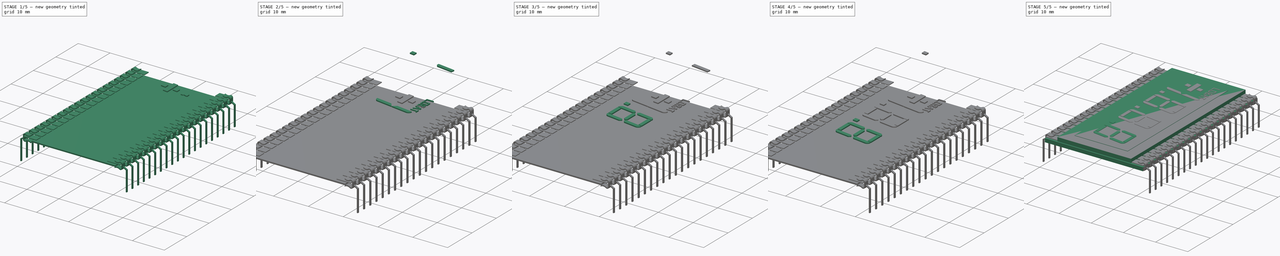
[diagram: build sequence overview — one tinted view per stage of 5, left to right]
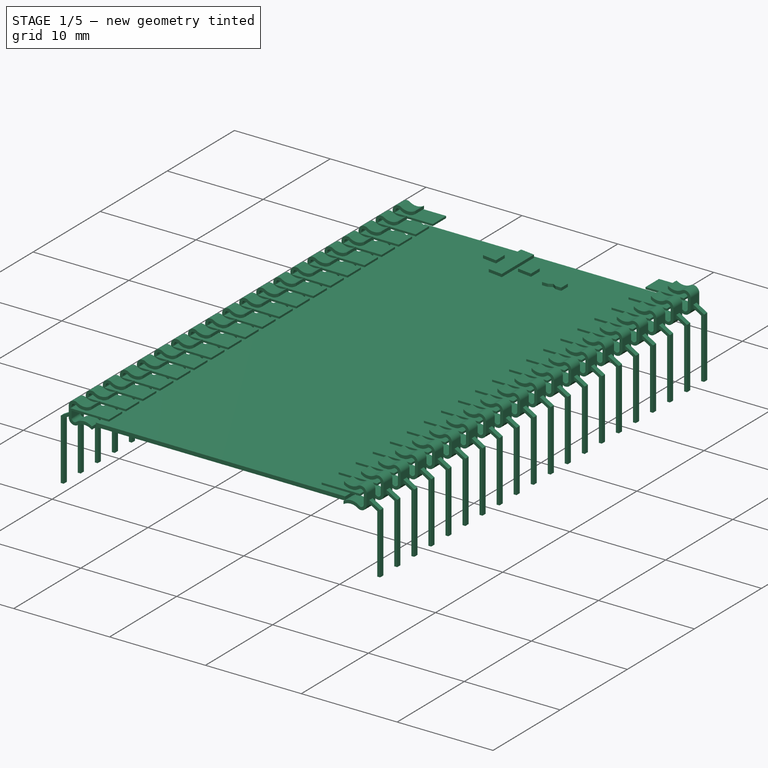
[diagram: stage 1 of 5 — iso view after this stage's code; geometry added in this stage tinted green]
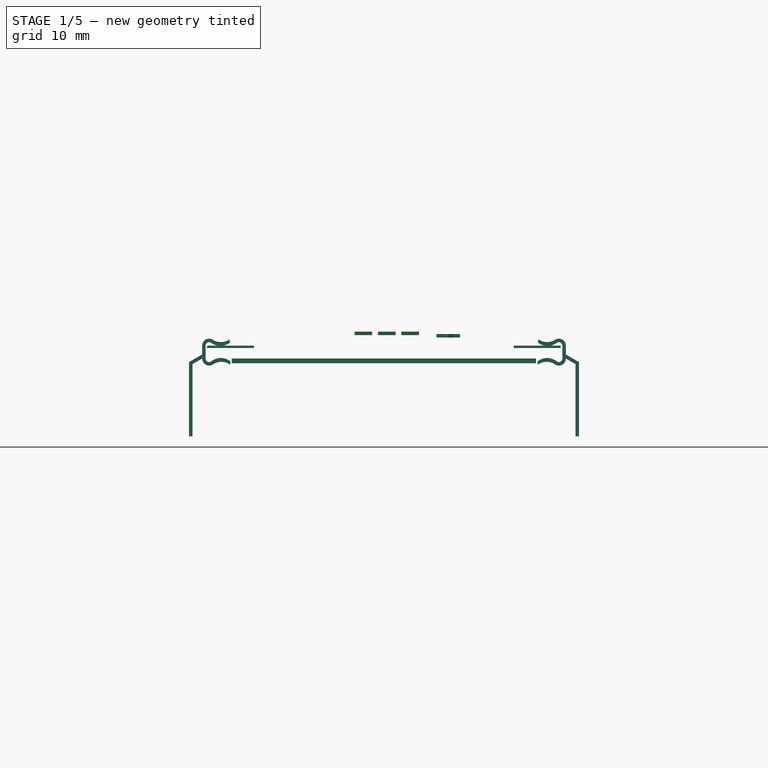
[diagram: stage 1 of 5 — front view after this stage's code; geometry added in this stage tinted green]
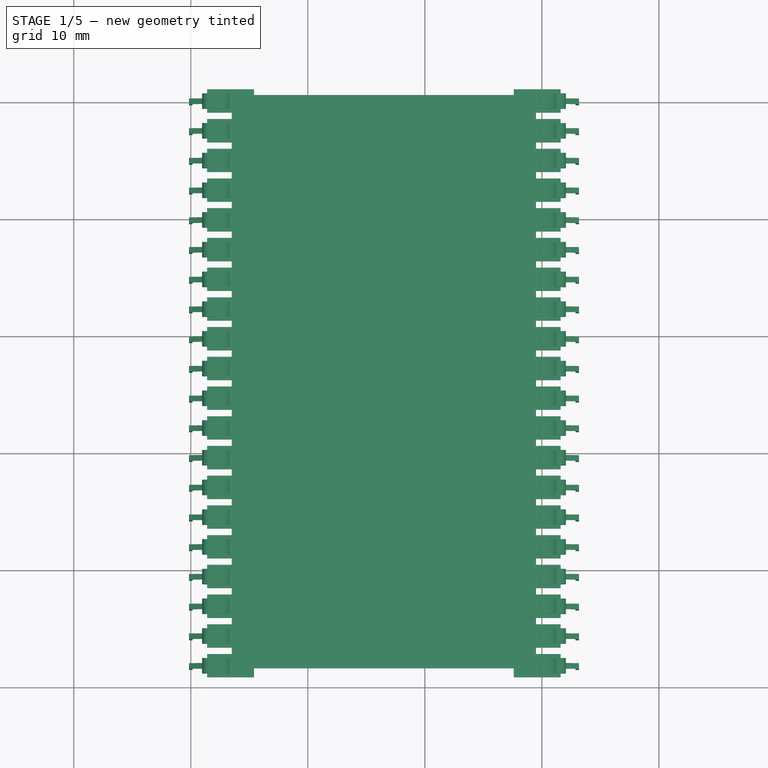
[diagram: stage 1 of 5 — top view after this stage's code; geometry added in this stage tinted green]
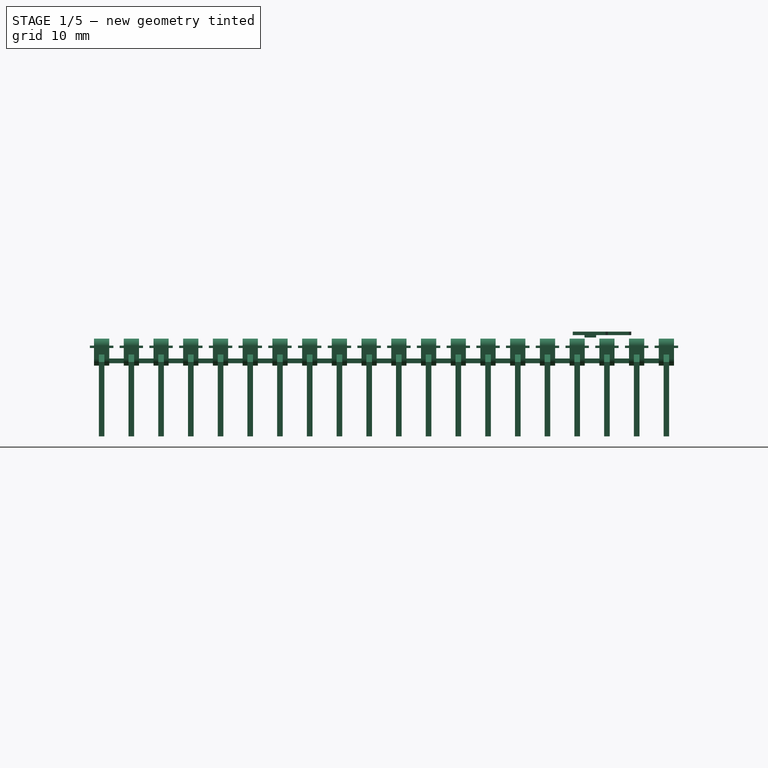
[diagram: stage 1 of 5 — right view after this stage's code; geometry added in this stage tinted green]
FCSTD DOCUMENT  (FreeCAD 0.17R11223 (Git))
Label: DE113-XX-XX_12
License: All rights reserved
LicenseURL: http://en.wikipedia.org/wiki/All_rights_reserved
objects: Part::Box×89, Part::Chamfer×38, Part::Cut×24, Part::Fillet×14, Part::MultiFuse×8, Part::FeaturePython×4, Sketcher::SketchObject×3, PartDesign::Pad×3, App::DocumentObjectGroup×3, PartDesign::Body×1
note: 187 computed .brp shape members not serialized (recipe doc carries the construction recipe); baked Part::Feature solids carry a one-line shape summary decoded from their .brp

FEATURE [Part::Box] Box003  label="Pad082"
  AttacherType = Attacher::AttachEngine3D
  Height = 0.2
  Length = 4
  Placement = pos=(1.4,-1,1.3) rot=(0,0,1;0rad)
  Width = 2
FEATURE [Part::Box] Box023  label="Pad102"
  AttacherType = Attacher::AttachEngine3D
  Height = 0.2
  Length = 4
  Placement = pos=(27.6,-1,1.3) rot=(0,0,1;0rad)
  Width = 2
FEATURE [Part::Box] Box199  label="Kub156"
  AttacherType = Attacher::AttachEngine3D
  Height = 0.3
  Length = 1.5
  Placement = pos=(11,12,2.2) rot=(0,0,1;0rad)
  Width = 1.5
FEATURE [Part::Box] Box200  label="Kub157"
  AttacherType = Attacher::AttachEngine3D
  Height = 0.3
  Length = 2
  Placement = pos=(10.5,10.76,2.2) rot=(0,0,-1;0.139626rad)
  Width = 1.5
FEATURE [Part::Box] Box201  label="Kub158"
  AttacherType = Attacher::AttachEngine3D
  Height = 0.3
  Length = 2
  Placement = pos=(10.7,13.55,2.2) rot=(0,0,-1;0.139626rad)
  Width = 1.5
FEATURE [Part::Cut] Cut027
  Base = -> Box199
  Tool = -> Box201
FEATURE [Part::Cut] Cut028
  Base = -> Cut027
  Placement = pos=(3,-18,0.2) rot=(0,0,1;0rad)
  Tool = -> Box200
FEATURE [Part::Box] Box202  label="Kub159"
  AttacherType = Attacher::AttachEngine3D
  Height = 0.3
  Length = 1.5
  Placement = pos=(11,12,2.2) rot=(0,0,1;0rad)
  Width = 1.5
FEATURE [Part::Box] Box203  label="Kub160"
  AttacherType = Attacher::AttachEngine3D
  Height = 0.3
  Length = 2
  Placement = pos=(10.5,10.76,2.2) rot=(0,0,-1;0.139626rad)
  Width = 1.5
FEATURE [Part::Box] Box204  label="Kub161"
  AttacherType = Attacher::AttachEngine3D
  Height = 0.3
  Length = 2
  Placement = pos=(10.7,13.55,2.2) rot=(0,0,-1;0.139626rad)
  Width = 1.5
FEATURE [Part::Cut] Cut029
  Base = -> Box202
  Tool = -> Box204
FEATURE [Part::Cut] Cut030
  Base = -> Cut029
  Placement = pos=(7,-18.5,0.2) rot=(0,0,1;0rad)
  Tool = -> Box203
FEATURE [Part::Box] Box205  label="Kub162"
  AttacherType = Attacher::AttachEngine3D
  Height = 0.3
  Length = 1.5
  Placement = pos=(0,10,2.2) rot=(0,0,1;0rad)
  Width = 5
FEATURE [Part::Box] Box206  label="Kub163"
  AttacherType = Attacher::AttachEngine3D
  Height = 0.3
  Length = 3
  Placement = pos=(-1,15.15,2.2) rot=(0,0,-1;0.139626rad)
  Width = 5
FEATURE [Part::Box] Box207  label="Kub164"
  AttacherType = Attacher::AttachEngine3D
  Height = 0.3
  Length = 3
  Placement = pos=(-1,5.3,2.2) rot=(0,0,-1;0.139626rad)
  Width = 5
FEATURE [Part::Cut] Cut031
  Base = -> Box205
  Tool = -> Box206
FEATURE [Part::Cut] Cut032
  Base = -> Cut031
  Placement = pos=(16,-18,0.2) rot=(0,0,1;0rad)
  Tool = -> Box207
FEATURE [Part::Box] Box229  label="Kub186"
  AttacherType = Attacher::AttachEngine3D
  Height = 0.3
  Length = 0.6
  Placement = pos=(21,-7,2.2) rot=(0,0,1;0rad)
  Width = 0.2
FEATURE [Part::Box] Box230  label="Kub187"
  AttacherType = Attacher::AttachEngine3D
  Height = 0.3
  Length = 0.6
  Placement = pos=(22.4,-7,2.2) rot=(0,0,1;0rad)
  Width = 0.2
FEATURE [Part::Box] Box231  label="Kub188"
  AttacherType = Attacher::AttachEngine3D
  Height = 0.3
  Length = 0.2
  Placement = pos=(22.8,-7,2.2) rot=(0,0,1;0rad)
  Width = 1
FEATURE [Part::Box] Box232  label="Kub189"
  AttacherType = Attacher::AttachEngine3D
  Height = 0.3
  Length = 0.6
  Placement = pos=(21.9,-6.7,2.2) rot=(0,0,-1;0.523599rad)
  Width = 0.2
FEATURE [Part::Box] Box233  label="Kub190"
  AttacherType = Attacher::AttachEngine3D
  Height = 0.3
  Length = 0.6
  Placement = pos=(21.6,-7,2.2) rot=(0,0,1;0.523599rad)
  Width = 0.2
FEATURE [Sketcher::SketchObject] Sketch041
  MapMode = 5
  sketch-geometry (12):
    g0: ArcOfCircle CenterX=0.3 CenterY=1.4 CenterZ=0 NormalX=0 NormalY=0 NormalZ=1 Radius=0.3 StartAngle=1.07185 EndAngle=3.14159
    g1: ArcOfCircle CenterX=0.3 CenterY=0.3 CenterZ=0 NormalX=0 NormalY=0 NormalZ=1 Radius=0.3 StartAngle=3.14159 EndAngle=5.21325
    g2: ArcOfCircle CenterX=1.26236 CenterY=2.71881 CenterZ=0 NormalX=0 NormalY=0 NormalZ=1 Radius=1.33577 StartAngle=4.05255 EndAngle=5.35633
    g3: ArcOfCircle CenterX=0.3 CenterY=1.4 CenterZ=0 NormalX=0 NormalY=0 NormalZ=1 Radius=0.6 StartAngle=1.16195 EndAngle=3.14159
    g4: ArcOfCircle CenterX=1.30141 CenterY=3.03549 CenterZ=0 NormalX=0 NormalY=0 NormalZ=1 Radius=1.32631 StartAngle=4.09955 EndAngle=5.32523
    g5: ArcOfCircle CenterX=0.3 CenterY=0.3 CenterZ=0 NormalX=0 NormalY=0 NormalZ=1 Radius=0.6 StartAngle=3.14159 EndAngle=5.20697
    g6: ArcOfCircle CenterX=1.29932 CenterY=-0.992274 CenterZ=0 NormalX=0 NormalY=0 NormalZ=1 Radius=1.33812 StartAngle=0.919458 EndAngle=2.26419
    g7: ArcOfCircle CenterX=1.34768 CenterY=-1.29457 CenterZ=0 NormalX=0 NormalY=0 NormalZ=1 Radius=1.31124 StartAngle=0.949854 EndAngle=2.19174
    g8: LineSegment StartX=2.11056 StartY=0.071899 StartZ=0 EndX=2.11056 EndY=-0.228101 EndZ=0
    g9: LineSegment StartX=2.06429 StartY=1.95055 StartZ=0 EndX=2.06429 EndY=1.65055 EndZ=0
    g10: LineSegment StartX=0 StartY=1.4 StartZ=0 EndX=0 EndY=0.3 EndZ=0
    g11: LineSegment StartX=-0.3 StartY=1.4 StartZ=0 EndX=-0.3 EndY=0.3 EndZ=0
  constraints (52):
    c: Radius(g0) = 0.3
    c: Radius(g2) = 1.33577
    c: Radius(g1) = 0.3
    c: DistanceX(g-1,g1) = 0.3
    c: DistanceY(g-1,g1) = 0.3
    c: Radius(g5) = 0.6
    c: DistanceX(g-1,g5) = 0.3
    c: DistanceY(g-1,g5) = 0.3
    c: DistanceY(g-1,g0) = 1.4
    c: DistanceX(g-1,g0) = 0.3
    c: Radius(g3) = 0.6
    c: DistanceX(g0,g3) = 0.3
    c: DistanceY(g-1,g3) = 1.4
    c: DistanceY(g5,g7) = 0
    c: DistanceX(g5,g7) = 0
    c: DistanceY(g1,g6) = 0
    c: DistanceX(g1,g6) = 0
    c: DistanceY(g0,g2) = 0
    c: DistanceX(g0,g2) = 0
    c: DistanceY(g3,g4) = 0
    c: DistanceX(g3,g4) = 0
    c: Radius(g4) = 1.32631
    c: Radius(g6) = 1.33812
    c: Radius(g7) = 1.31124
    c: DistanceY(g-1,g1) = 0.3
    c: DistanceY(g-1,g5) = 0.3
    c: DistanceX(g-1,g5) = 0.584797
    c: DistanceX(g1,g1) = 0.444055
    c: DistanceY(g1,g0) = 1.1
    c: DistanceY(g5,g3) = 1.1
    c: DistanceX(g0,g0) = 0.443549
    c: DistanceY(g0,g3) = 0.550548
    c: DistanceY(g7,g6) = 0.3
    c: DistanceY(g2,g4) = 0.3
    c: DistanceY(g3,g4) = 0
    c: DistanceX(g3,g4) = 1.52576
    c: DistanceX(g2,g4) = 0
    c: DistanceX(g5,g7) = 1.52576
    c: DistanceY(g7,g5) = 0
    c: DistanceX(g6,g7) = 0
    c: Coincident(g8,g6)
    c: DistanceY(g8,g8) = 0.3
    c: DistanceX(g7,g8) = 0
    c: Coincident(g9,g4)
    c: DistanceY(g9,g9) = 0.3
    c: DistanceX(g2,g9) = 0
    c: Coincident(g10,g0)
    c: DistanceY(g10,g10) = 1.1
    c: DistanceX(g1,g10) = 0
    c: Coincident(g11,g3)
    c: DistanceY(g11,g11) = 1.1
    c: DistanceX(g5,g11) = 0
FEATURE [PartDesign::Pad] Pad041  label="Pad121"
  Length = 1.3
  Length2 = 100
  Profile = -> Sketch041
  Type = 0
FEATURE [Part::Box] Box234  label="Leg"
  AttacherType = Attacher::AttachEngine3D
  Height = 0.48
  Length = 0.3
  Placement = pos=(-1.42,-6.35,0.41) rot=(0,0,1;0rad)
  Width = 6.35
FEATURE [Part::Box] Box235  label="Kub191"
  AttacherType = Attacher::AttachEngine3D
  Height = 0.48
  Length = 0.3
  Placement = pos=(-1.42,0,0.41) rot=(0,0,-1;1.0472rad)
  Width = 1.4
FEATURE [Part::MultiFuse] Fusion085  label="Leg0001"
  Placement = pos=(1.27,0.65,0.1) rot=(1,0,0;1.5708rad)
  Shapes = -> [Pad041,Box235,Box234]
FEATURE [Sketcher::SketchObject] Sketch081
  MapMode = 5
  sketch-geometry (12):
    g0: ArcOfCircle CenterX=0.3 CenterY=1.4 CenterZ=0 NormalX=0 NormalY=0 NormalZ=1 Radius=0.3 StartAngle=1.07185 EndAngle=3.14159
    g1: ArcOfCircle CenterX=0.3 CenterY=0.3 CenterZ=0 NormalX=0 NormalY=0 NormalZ=1 Radius=0.3 StartAngle=3.14159 EndAngle=5.21325
    g2: ArcOfCircle CenterX=1.26236 CenterY=2.71881 CenterZ=0 NormalX=0 NormalY=0 NormalZ=1 Radius=1.33577 StartAngle=4.05255 EndAngle=5.35633
    g3: ArcOfCircle CenterX=0.3 CenterY=1.4 CenterZ=0 NormalX=0 NormalY=0 NormalZ=1 Radius=0.6 StartAngle=1.16195 EndAngle=3.14159
    g4: ArcOfCircle CenterX=1.30141 CenterY=3.03549 CenterZ=0 NormalX=0 NormalY=0 NormalZ=1 Radius=1.32631 StartAngle=4.09955 EndAngle=5.32523
    g5: ArcOfCircle CenterX=0.3 CenterY=0.3 CenterZ=0 NormalX=0 NormalY=0 NormalZ=1 Radius=0.6 StartAngle=3.14159 EndAngle=5.20697
    g6: ArcOfCircle CenterX=1.29932 CenterY=-0.992274 CenterZ=0 NormalX=0 NormalY=0 NormalZ=1 Radius=1.33812 StartAngle=0.919458 EndAngle=2.26419
    g7: ArcOfCircle CenterX=1.34768 CenterY=-1.29457 CenterZ=0 NormalX=0 NormalY=0 NormalZ=1 Radius=1.31124 StartAngle=0.949854 EndAngle=2.19174
    g8: LineSegment StartX=2.11056 StartY=0.071899 StartZ=0 EndX=2.11056 EndY=-0.228101 EndZ=0
    g9: LineSegment StartX=2.06429 StartY=1.95055 StartZ=0 EndX=2.06429 EndY=1.65055 EndZ=0
    g10: LineSegment StartX=0 StartY=1.4 StartZ=0 EndX=0 EndY=0.3 EndZ=0
    g11: LineSegment StartX=-0.3 StartY=1.4 StartZ=0 EndX=-0.3 EndY=0.3 EndZ=0
  constraints (52):
    c: Radius(g0) = 0.3
    c: Radius(g2) = 1.33577
    c: Radius(g1) = 0.3
    c: DistanceX(g-1,g1) = 0.3
    c: DistanceY(g-1,g1) = 0.3
    c: Radius(g5) = 0.6
    c: DistanceX(g-1,g5) = 0.3
    c: DistanceY(g-1,g5) = 0.3
    c: DistanceY(g-1,g0) = 1.4
    c: DistanceX(g-1,g0) = 0.3
    c: Radius(g3) = 0.6
    c: DistanceX(g0,g3) = 0.3
    c: DistanceY(g-1,g3) = 1.4
    c: DistanceY(g5,g7) = 0
    c: DistanceX(g5,g7) = 0
    c: DistanceY(g1,g6) = 0
    c: DistanceX(g1,g6) = 0
    c: DistanceY(g0,g2) = 0
    c: DistanceX(g0,g2) = 0
    c: DistanceY(g3,g4) = 0
    c: DistanceX(g3,g4) = 0
    c: Radius(g4) = 1.32631
    c: Radius(g6) = 1.33812
    c: Radius(g7) = 1.31124
    c: DistanceY(g-1,g1) = 0.3
    c: DistanceY(g-1,g5) = 0.3
    c: DistanceX(g-1,g5) = 0.584797
    c: DistanceX(g1,g1) = 0.444055
    c: DistanceY(g1,g0) = 1.1
    c: DistanceY(g5,g3) = 1.1
    c: DistanceX(g0,g0) = 0.443549
    c: DistanceY(g0,g3) = 0.550548
    c: DistanceY(g7,g6) = 0.3
    c: DistanceY(g2,g4) = 0.3
    c: DistanceY(g3,g4) = 0
    c: DistanceX(g3,g4) = 1.52576
    c: DistanceX(g2,g4) = 0
    c: DistanceX(g5,g7) = 1.52576
    c: DistanceY(g7,g5) = 0
    c: DistanceX(g6,g7) = 0
    c: Coincident(g8,g6)
    c: DistanceY(g8,g8) = 0.3
    c: DistanceX(g7,g8) = 0
    c: Coincident(g9,g4)
    c: DistanceY(g9,g9) = 0.3
    c: DistanceX(g2,g9) = 0
    c: Coincident(g10,g0)
    c: DistanceY(g10,g10) = 1.1
    c: DistanceX(g1,g10) = 0
    c: Coincident(g11,g3)
    c: DistanceY(g11,g11) = 1.1
    c: DistanceX(g5,g11) = 0
FEATURE [PartDesign::Pad] Pad081  label="Pad161"
  Length = 1.3
  Length2 = 100
  Profile = -> Sketch081
  Type = 0
FEATURE [Part::Box] Box314  label="Leg0080"
  AttacherType = Attacher::AttachEngine3D
  Height = 0.48
  Length = 0.3
  Placement = pos=(-1.42,-6.35,0.41) rot=(0,0,1;0rad)
  Width = 6.35
FEATURE [Part::Box] Box315  label="Kub231"
  AttacherType = Attacher::AttachEngine3D
  Height = 0.48
  Length = 0.3
  Placement = pos=(-1.42,0,0.41) rot=(0,0,-1;1.0472rad)
  Width = 1.4
FEATURE [Part::MultiFuse] Fusion125  label="Leg0081"
  Placement = pos=(31.75,-0.65,0.1) rot=(0,0.707107,0.707107;3.14159rad)
  Shapes = -> [Pad081,Box315,Box314]
FEATURE [Part::MultiFuse] Fusion  label="Minus"
  Shapes = -> [Cut028,Cut030,Cut032]
FEATURE [App::DocumentObjectGroup] Grupp002  label="Digits"
  Group = -> [Fusion081,Fusion082,Fusion083,Fusion084,Fusion080,Fusion]
FEATURE [Part::Box] Box316  label="UnderBed"
  AttacherType = Attacher::AttachEngine3D
  Height = 0.4
  Length = 26
  Placement = pos=(3.5,-48.47,0) rot=(0,0,1;0rad)
  Width = 49
FEATURE [Part::FeaturePython] Array  label="Pin001-0019"  # Draft array (typed FeaturePython)
  Angle = 360
  ArrayType = 0
  Axis = (0,0,1)
  Base = -> Fusion085
  Center = (0,0,0)
  Fuse = false
  IntervalAxis = (0,0,0)
  IntervalX = (1,0,0)
  IntervalY = (0,-2.54,0)
  IntervalZ = (0,0,0)
  NumberPolar = 1
  NumberX = 1
  NumberY = 20
  NumberZ = 1
FEATURE [Part::FeaturePython] Array001  label="Pin020-040"  # Draft array (typed FeaturePython)
  Angle = 360
  ArrayType = 0
  Axis = (0,0,1)
  Base = -> Fusion125
  Center = (0,0,0)
  Fuse = false
  IntervalAxis = (0,0,0)
  IntervalX = (1,0,0)
  IntervalY = (0,-2.54,0)
  IntervalZ = (0,0,0)
  NumberPolar = 1
  NumberX = 1
  NumberY = 20
  NumberZ = 1
FEATURE [App::DocumentObjectGroup] Grupp001  label="Legs"
  Group = -> [Fusion125,Fusion085,Array,Array001]
FEATURE [Part::FeaturePython] Array002  label="Pads020-040"  # Draft array (typed FeaturePython)
  Angle = 360
  ArrayType = 0
  Axis = (0,0,1)
  Base = -> Box023
  Center = (0,0,0)
  Fuse = false
  IntervalAxis = (0,0,0)
  IntervalX = (1,0,0)
  IntervalY = (0,-2.54,0)
  IntervalZ = (0,0,0)
  NumberPolar = 1
  NumberX = 1
  NumberY = 20
  NumberZ = 1
FEATURE [App::DocumentObjectGroup] Grupp  label="Pads"
  Group = -> [Box003,Box023,Array002]
FEATURE [Part::FeaturePython] Array003  label="Pads001-020"  # Draft array (typed FeaturePython)
  Angle = 360
  ArrayType = 0
  Axis = (0,0,1)
  Base = -> Box003
  Center = (0,0,0)
  Fuse = false
  IntervalAxis = (0,0,0)
  IntervalX = (1,0,0)
  IntervalY = (0,-2.54,0)
  IntervalZ = (0,0,0)
  NumberPolar = 1
  NumberX = 1
  NumberY = 20
  NumberZ = 1
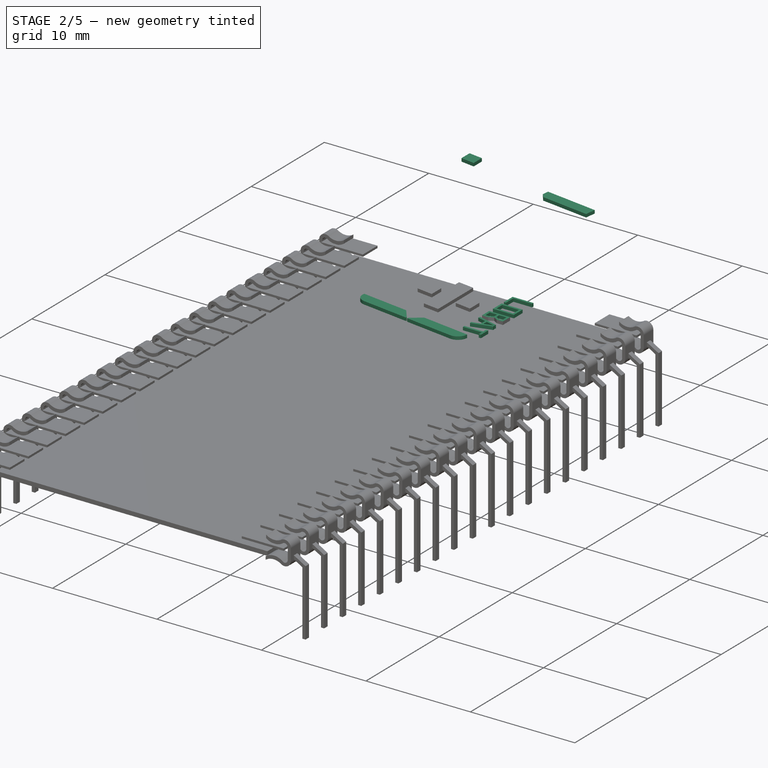
[diagram: stage 2 of 5 — iso view after this stage's code; geometry added in this stage tinted green]
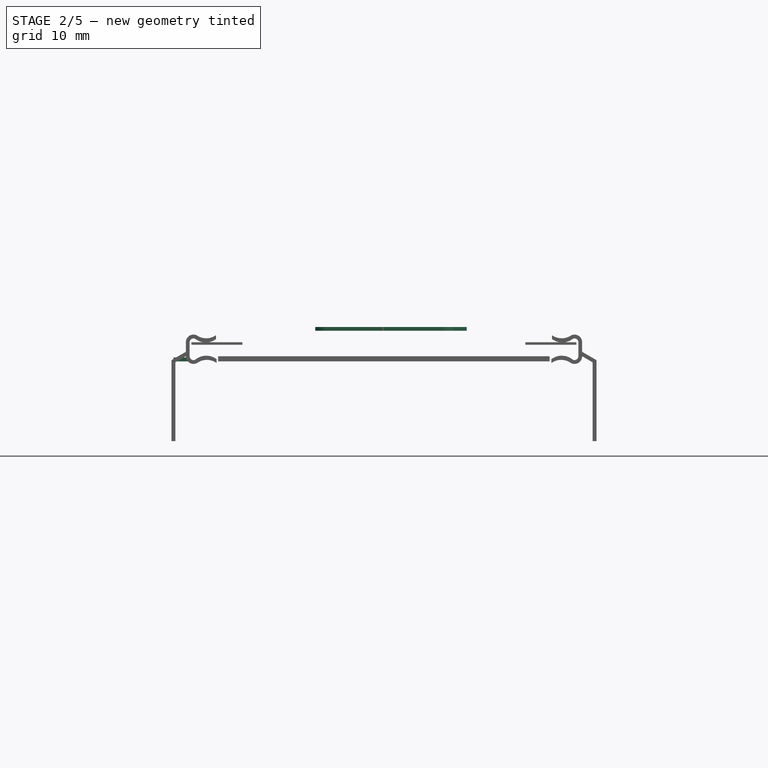
[diagram: stage 2 of 5 — front view after this stage's code; geometry added in this stage tinted green]
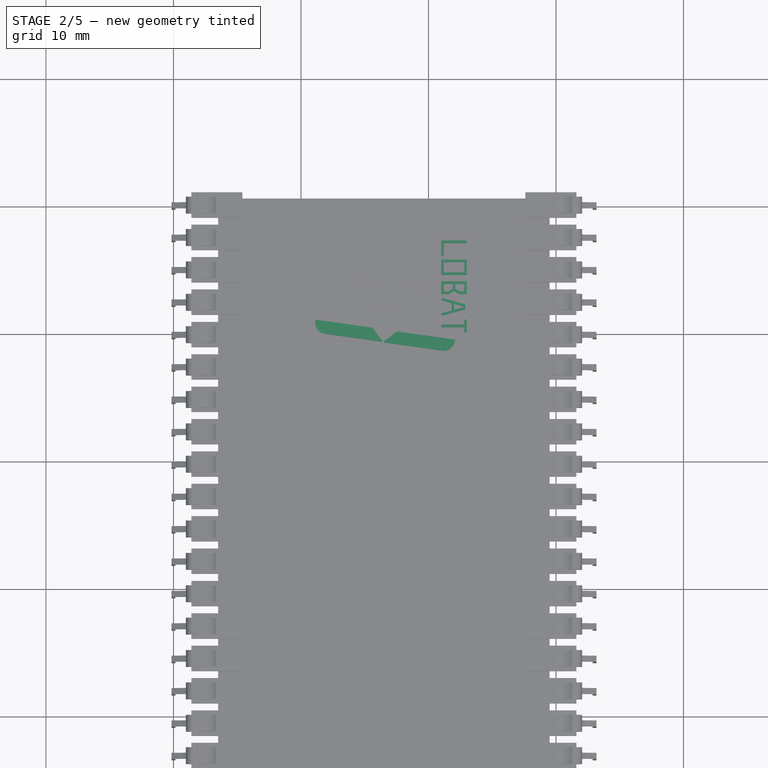
[diagram: stage 2 of 5 — top view after this stage's code; geometry added in this stage tinted green]
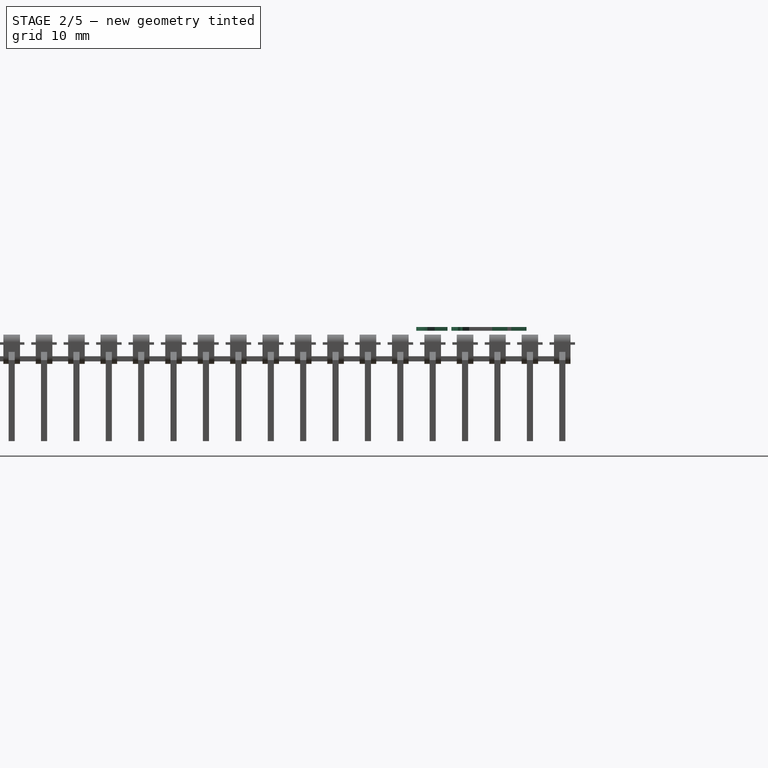
[diagram: stage 2 of 5 — right view after this stage's code; geometry added in this stage tinted green]
FEATURE [Part::Box] Box183  label="Kub140"
  AttacherType = Attacher::AttachEngine3D
  Height = 0.3
  Length = 5
  Placement = pos=(9,18,0) rot=(0,0,-1;0.139626rad)
  Width = 1
FEATURE [Part::Chamfer] Chamfer070
  Base = -> Box183
  Edges = 1 edges r=0.4: [Edge1]
FEATURE [Part::Box] Box192  label="Kub149"
  AttacherType = Attacher::AttachEngine3D
  Height = 0.3
  Length = 1.3
  Placement = pos=(0,20,0) rot=(0,0,1;0rad)
  Width = 1.3
FEATURE [Part::Box] Box193  label="Kub150"
  AttacherType = Attacher::AttachEngine3D
  Height = 0.3
  Length = 2
  Placement = pos=(-0.5,19.25,0) rot=(0,0,-1;0.139626rad)
  Width = 1
FEATURE [Part::Box] Box194  label="Kub151"
  AttacherType = Attacher::AttachEngine3D
  Height = 0.3
  Length = 2
  Placement = pos=(-0.5,21.37,0) rot=(0,0,-1;0.139626rad)
  Width = 1
FEATURE [Part::Cut] Cut025
  Base = -> Box192
  Tool = -> Box194
FEATURE [Part::Cut] Cut026
  Base = -> Cut025
  Tool = -> Box193
FEATURE [Part::Box] Box196  label="Kub153"
  AttacherType = Attacher::AttachEngine3D
  Height = 0.3
  Length = 5.4
  Placement = pos=(0,13,0) rot=(0,0,-1;0.139626rad)
  Width = 1
FEATURE [Part::Box] Box198  label="Kub155"
  AttacherType = Attacher::AttachEngine3D
  Height = 0.3
  Length = 5.5
  Placement = pos=(6,12,0) rot=(0,0,-1;0.139626rad)
  Width = 1
FEATURE [Part::Chamfer] Chamfer072
  Base = -> Box196
  Edges = 1 edges r=0.9: [Edge7]
FEATURE [Part::Chamfer] Chamfer
  Base = -> Box198
  Edges = 1 edges r=0.9: [Edge3]
FEATURE [Part::Fillet] Fillet014
  Base = -> Chamfer
  Edges = 1 edges r=0.9: [Edge12]
  Placement = pos=(-0.5,0.2,0) rot=(0,0,1;0rad)
FEATURE [Part::Fillet] Fillet015
  Base = -> Chamfer072
  Edges = 1 edges r=0.9: [Edge12]
FEATURE [Part::MultiFuse] Fusion083  label="Digit000"
  Placement = pos=(11,-23,2.4) rot=(0,0,1;0rad)
  Shapes = -> [Fillet014,Fillet015]
FEATURE [Part::Box] Box208  label="Kub165"
  AttacherType = Attacher::AttachEngine3D
  Height = 0.3
  Length = 1
  Placement = pos=(21,-3,2.2) rot=(0,0,1;0rad)
  Width = 0.2
FEATURE [Part::Box] Box209  label="Kub166"
  AttacherType = Attacher::AttachEngine3D
  Height = 0.3
  Length = 1
  Placement = pos=(22,-3,2.2) rot=(0,0,1;0rad)
  Width = 0.2
FEATURE [Part::Box] Box210  label="Kub167"
  AttacherType = Attacher::AttachEngine3D
  Height = 0.3
  Length = 0.2
  Placement = pos=(21,-4,2.2) rot=(0,0,1;0rad)
  Width = 1
FEATURE [Part::Box] Box211  label="Kub168"
  AttacherType = Attacher::AttachEngine3D
  Height = 0.3
  Length = 0.2
  Placement = pos=(21,-5.5,2.2) rot=(0,0,1;0rad)
  Width = 1
FEATURE [Part::Box] Box212  label="Kub169"
  AttacherType = Attacher::AttachEngine3D
  Height = 0.3
  Length = 1
  Placement = pos=(21,-5.5,2.2) rot=(0,0,1;0rad)
  Width = 0.2
FEATURE [Part::Box] Box213  label="Kub170"
  AttacherType = Attacher::AttachEngine3D
  Height = 0.3
  Length = 1
  Placement = pos=(22,-5.5,2.2) rot=(0,0,1;0rad)
  Width = 0.2
FEATURE [Part::Box] Box214  label="Kub171"
  AttacherType = Attacher::AttachEngine3D
  Height = 0.3
  Length = 1
  Placement = pos=(22,-4.5,2.2) rot=(0,0,1;0rad)
  Width = 0.2
FEATURE [Part::Box] Box215  label="Kub172"
  AttacherType = Attacher::AttachEngine3D
  Height = 0.3
  Length = 1
  Placement = pos=(21,-4.5,2.2) rot=(0,0,1;0rad)
  Width = 0.2
FEATURE [Part::Box] Box216  label="Kub173"
  AttacherType = Attacher::AttachEngine3D
  Height = 0.3
  Length = 0.2
  Placement = pos=(22.8,-5.5,2.2) rot=(0,0,1;0rad)
  Width = 1
FEATURE [Part::Box] Box217  label="Kub174"
  AttacherType = Attacher::AttachEngine3D
  Height = 0.3
  Length = 0.2
  Placement = pos=(21,-7,2.2) rot=(0,0,1;0rad)
  Width = 1
FEATURE [Part::Box] Box218  label="Kub175"
  AttacherType = Attacher::AttachEngine3D
  Height = 0.3
  Length = 0.2
  Placement = pos=(21.8,-8.4,2.2) rot=(0,0,1;0rad)
  Width = 0.7
FEATURE [Part::Box] Box219  label="Kub176"
  AttacherType = Attacher::AttachEngine3D
  Height = 0.3
  Length = 0.2
  Placement = pos=(22.8,-10,2.2) rot=(0,0,1;0rad)
  Width = 1
FEATURE [Part::Box] Box220  label="Kub177"
  AttacherType = Attacher::AttachEngine3D
  Height = 0.3
  Length = 1
  Placement = pos=(22,-9.6,2.2) rot=(0,0,1;0rad)
  Width = 0.2
FEATURE [Part::Box] Box221  label="Kub178"
  AttacherType = Attacher::AttachEngine3D
  Height = 0.3
  Length = 1
  Placement = pos=(21,-9.6,2.2) rot=(0,0,1;0rad)
  Width = 0.2
FEATURE [Part::Box] Box222  label="Kub179"
  AttacherType = Attacher::AttachEngine3D
  Height = 0.3
  Length = 1
  Placement = pos=(21,-6.2,2.2) rot=(0,0,1;0rad)
  Width = 0.2
FEATURE [Part::Box] Box223  label="Kub180"
  AttacherType = Attacher::AttachEngine3D
  Height = 0.3
  Length = 1
  Placement = pos=(22,-6.2,2.2) rot=(0,0,1;0rad)
  Width = 0.2
FEATURE [Part::Box] Box224  label="Kub181"
  AttacherType = Attacher::AttachEngine3D
  Height = 0.3
  Length = 1
  Placement = pos=(21,-7.5,2.2) rot=(0,0,-1;0.261799rad)
  Width = 0.2
FEATURE [Part::Box] Box225  label="Kub182"
  AttacherType = Attacher::AttachEngine3D
  Height = 0.3
  Length = 1
  Placement = pos=(21.9,-7.75,2.2) rot=(0,0,-1;0.261799rad)
  Width = 0.2
FEATURE [Part::Box] Box226  label="Kub183"
  AttacherType = Attacher::AttachEngine3D
  Height = 0.3
  Length = 1
  Placement = pos=(21.05,-8.7,2.2) rot=(0,0,1;0.261799rad)
  Width = 0.2
FEATURE [Part::Box] Box227  label="Kub184"
  AttacherType = Attacher::AttachEngine3D
  Height = 0.3
  Length = 1
  Placement = pos=(21.96,-8.45,2.2) rot=(0,0,1;0.261799rad)
  Width = 0.2
FEATURE [Part::Box] Box228  label="Kub185"
  AttacherType = Attacher::AttachEngine3D
  Height = 0.3
  Length = 0.2
  Placement = pos=(21.9,-6.7,2.2) rot=(0,0,1;0rad)
  Width = 0.7
FEATURE [Part::MultiFuse] Fusion084  label="Lowbat"
  Placement = pos=(0,0,0.2) rot=(0,0,1;0rad)
  Shapes = -> [Box233,Box212,Box214,Box218,Box225,Box217,Box220,Box208,Box211,Box213,Box215,Box224,Box210,Box222,Box209,Box221,Box216,Box219,Box223,Box226,Box231,Box228,Box232,Box227,Box230,Box229]
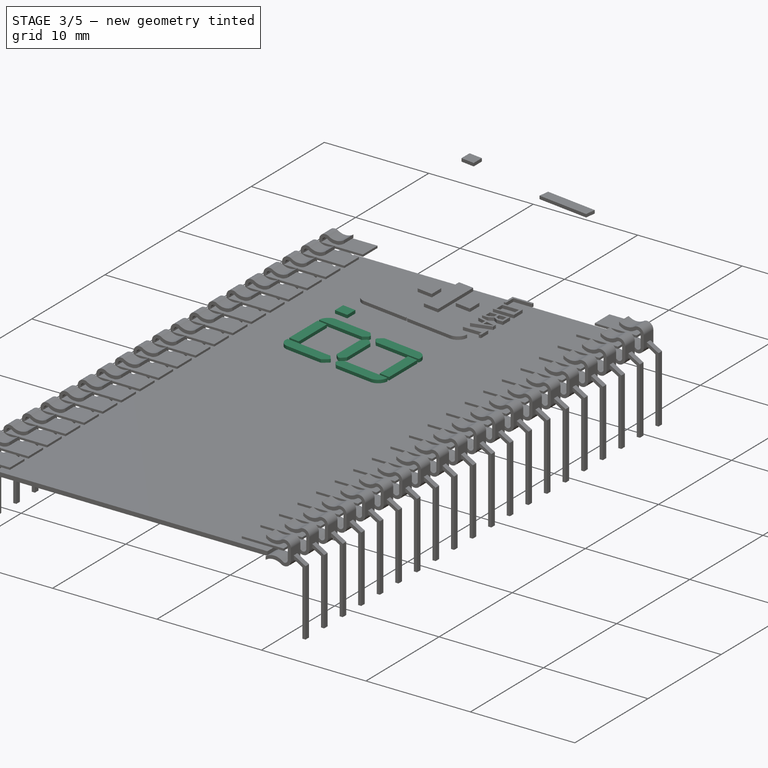
[diagram: stage 3 of 5 — iso view after this stage's code; geometry added in this stage tinted green]
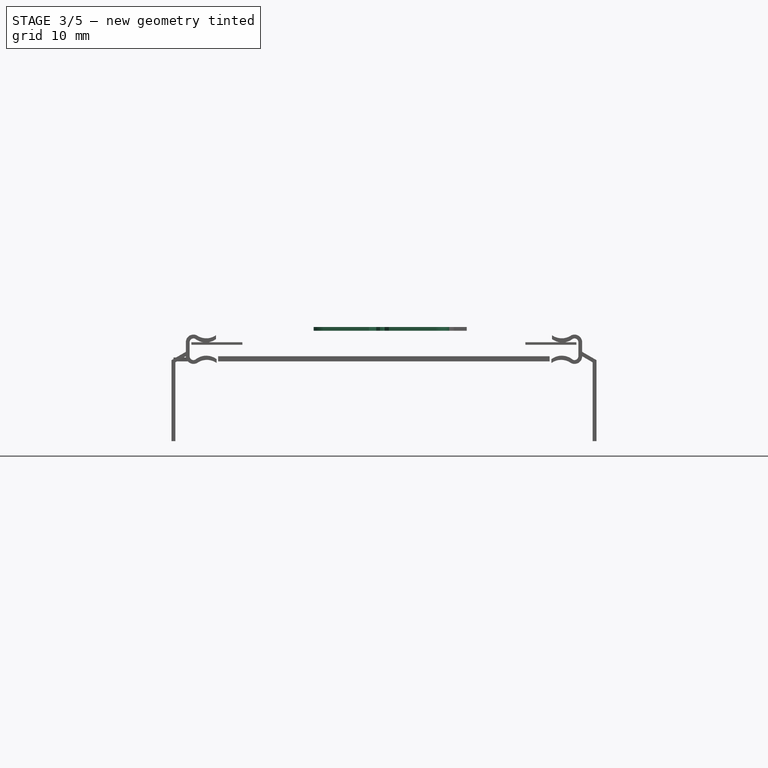
[diagram: stage 3 of 5 — front view after this stage's code; geometry added in this stage tinted green]
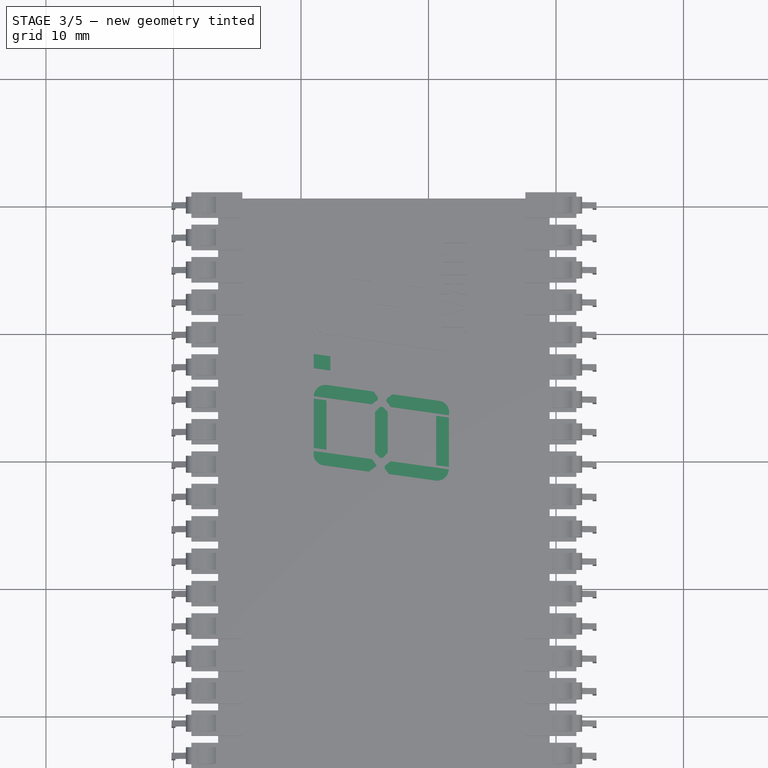
[diagram: stage 3 of 5 — top view after this stage's code; geometry added in this stage tinted green]
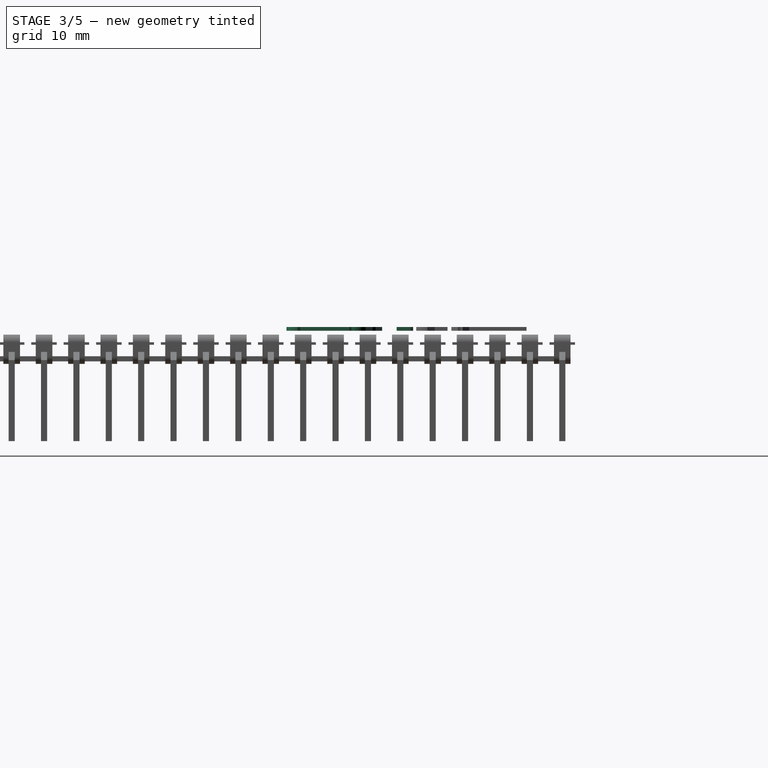
[diagram: stage 3 of 5 — right view after this stage's code; geometry added in this stage tinted green]
FEATURE [Part::Box] Box169  label="Kub126"
  AttacherType = Attacher::AttachEngine3D
  Height = 0.3
  Length = 5
  Placement = pos=(9,18,0) rot=(0,0,-1;0.139626rad)
  Width = 1
FEATURE [Part::Box] Box178  label="Kub135"
  AttacherType = Attacher::AttachEngine3D
  Height = 0.3
  Length = 1.3
  Placement = pos=(0,20,0) rot=(0,0,1;0rad)
  Width = 1.3
FEATURE [Part::Box] Box179  label="Kub136"
  AttacherType = Attacher::AttachEngine3D
  Height = 0.3
  Length = 2
  Placement = pos=(-0.5,19.25,0) rot=(0,0,-1;0.139626rad)
  Width = 1
FEATURE [Part::Box] Box180  label="Kub137"
  AttacherType = Attacher::AttachEngine3D
  Height = 0.3
  Length = 2
  Placement = pos=(-0.5,21.37,0) rot=(0,0,-1;0.139626rad)
  Width = 1
FEATURE [Part::Cut] Cut019
  Base = -> Box178
  Tool = -> Box180
FEATURE [Part::Cut] Cut020
  Base = -> Cut019
  Tool = -> Box179
FEATURE [Part::Box] Box181  label="Kub138"
  AttacherType = Attacher::AttachEngine3D
  Height = 0.3
  Length = 5
  Placement = pos=(0,18,0) rot=(0,0,-1;0.139626rad)
  Width = 1
FEATURE [Part::Box] Box182  label="Kub139"
  AttacherType = Attacher::AttachEngine3D
  Height = 0.3
  Length = 5
  Placement = pos=(0,13,0) rot=(0,0,-1;0.139626rad)
  Width = 1
FEATURE [Part::Box] Box184  label="Kub141"
  AttacherType = Attacher::AttachEngine3D
  Height = 0.3
  Length = 5
  Placement = pos=(6,12,0) rot=(0,0,-1;0.139626rad)
  Width = 1
FEATURE [Part::Box] Box185  label="Kub142"
  AttacherType = Attacher::AttachEngine3D
  Height = 0.3
  Length = 1
  Placement = pos=(-4,6,0) rot=(0,0,1;0rad)
  Width = 4
FEATURE [Part::Box] Box186  label="Kub143"
  AttacherType = Attacher::AttachEngine3D
  Height = 0.3
  Length = 3
  Placement = pos=(-5,10.14,0) rot=(0,0,-1;0.139626rad)
  Width = 1
FEATURE [Part::Box] Box187  label="Kub144"
  AttacherType = Attacher::AttachEngine3D
  Height = 0.3
  Length = 3
  Placement = pos=(-5,5.27,0) rot=(0,0,-1;0.139626rad)
  Width = 1
FEATURE [Part::Box] Box188  label="Kub145"
  AttacherType = Attacher::AttachEngine3D
  Height = 0.3
  Length = 1
  Placement = pos=(-10,14,0) rot=(0,0,1;0rad)
  Width = 4
FEATURE [Part::Box] Box189  label="Kub146"
  AttacherType = Attacher::AttachEngine3D
  Height = 0.3
  Length = 1
  Placement = pos=(-4,14,0) rot=(0,0,1;0rad)
  Width = 4
FEATURE [Part::Box] Box190  label="Kub147"
  AttacherType = Attacher::AttachEngine3D
  Height = 0.3
  Length = 3
  Placement = pos=(-5,18.14,0) rot=(0,0,-1;0.139626rad)
  Width = 1
FEATURE [Part::Box] Box191  label="Kub148"
  AttacherType = Attacher::AttachEngine3D
  Height = 0.3
  Length = 3
  Placement = pos=(-5,13.27,0) rot=(0,0,-1;0.139626rad)
  Width = 1
FEATURE [Part::Chamfer] Chamfer060
  Base = -> Box188
  Edges = 1 edges r=0.4: [Edge3]
FEATURE [Part::Chamfer] Chamfer061
  Base = -> Chamfer060
  Edges = 1 edges r=0.4: [Edge15]
FEATURE [Part::Chamfer] Chamfer062
  Base = -> Chamfer061
  Edges = 1 edges r=0.4: [Edge14]
FEATURE [Part::Chamfer] Chamfer063
  Base = -> Chamfer062
  Edges = 1 edges r=0.4: [Edge16]
  Placement = pos=(14.8,-0.85,0) rot=(0,0,1;0rad)
FEATURE [Part::Cut] Cut021
  Base = -> Box189
  Tool = -> Box191
FEATURE [Part::Cut] Cut022
  Base = -> Cut021
  Placement = pos=(4,-0.2,0) rot=(0,0,1;0rad)
  Tool = -> Box190
FEATURE [Part::Cut] Cut023
  Base = -> Box185
  Tool = -> Box187
FEATURE [Part::Cut] Cut024
  Base = -> Cut023
  Placement = pos=(13.6,6.45,0) rot=(0,0,1;0rad)
  Tool = -> Box186
FEATURE [Part::Chamfer] Chamfer064
  Base = -> Box181
  Edges = 1 edges r=0.4: [Edge7]
FEATURE [Part::Chamfer] Chamfer065
  Base = -> Chamfer064
  Edges = 1 edges r=0.4: [Edge3]
FEATURE [Part::Fillet] Fillet010
  Base = -> Chamfer065
  Edges = 1 edges r=0.9: [Edge18]
FEATURE [Part::Fillet] Fillet011
  Base = -> Box182
  Edges = 1 edges r=0.9: [Edge1]
FEATURE [Part::Chamfer] Chamfer066
  Base = -> Fillet011
  Edges = 1 edges r=0.5: [Edge15]
FEATURE [Part::Chamfer] Chamfer067
  Base = -> Chamfer066
  Edges = 1 edges r=0.4: [Edge14]
  Placement = pos=(-0.13,-0.3,0) rot=(0,0,1;0rad)
FEATURE [Part::Chamfer] Chamfer068
  Base = -> Box184
  Edges = 1 edges r=0.4: [Edge3]
FEATURE [Part::Chamfer] Chamfer069
  Base = -> Chamfer068
  Edges = 1 edges r=0.4: [Edge3]
FEATURE [Part::Fillet] Fillet012
  Base = -> Chamfer069
  Edges = 1 edges r=0.9: [Edge17]
  Placement = pos=(-0.5,-0.05,0) rot=(0,0,1;0rad)
FEATURE [Part::Chamfer] Chamfer071
  Base = -> Chamfer070
  Edges = 1 edges r=0.4: [Edge3]
FEATURE [Part::Fillet] Fillet013
  Base = -> Chamfer071
  Edges = 1 edges r=0.9: [Edge17]
  Placement = pos=(-3.36,-0.8,0) rot=(0,0,1;0rad)
FEATURE [Part::MultiFuse] Fusion082  label="Digit001"
  Placement = pos=(11,-33,2.4) rot=(0,0,1;0rad)
  Shapes = -> [Cut024,Fillet010,Fillet013,Chamfer067,Fillet012,Cut022,Cut026,Chamfer063]
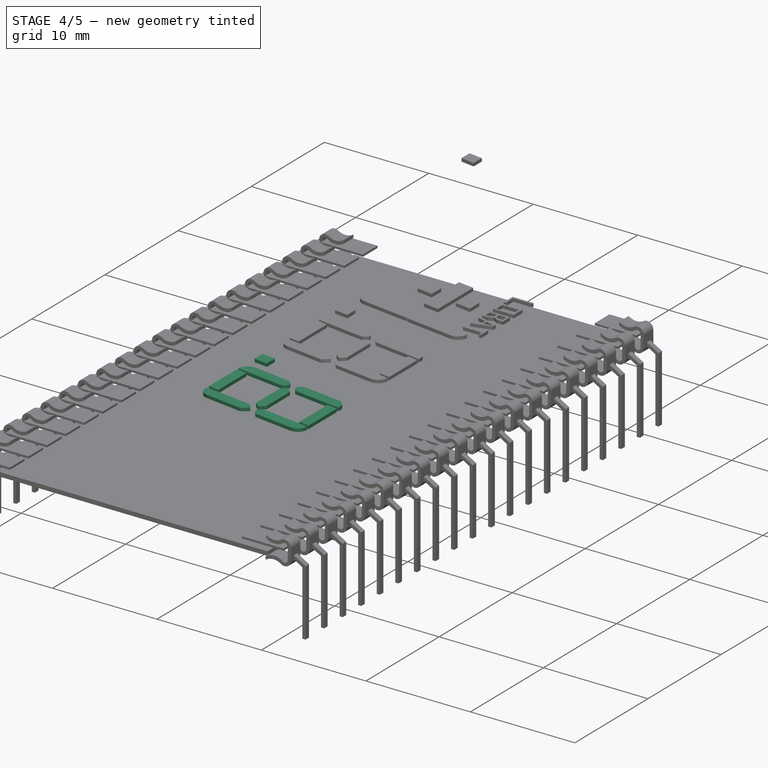
[diagram: stage 4 of 5 — iso view after this stage's code; geometry added in this stage tinted green]
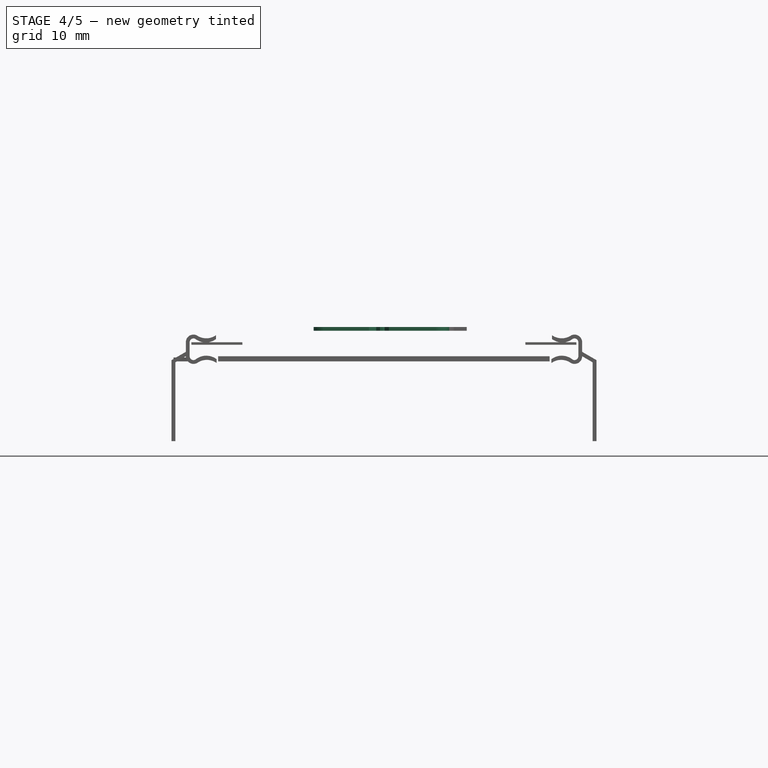
[diagram: stage 4 of 5 — front view after this stage's code; geometry added in this stage tinted green]
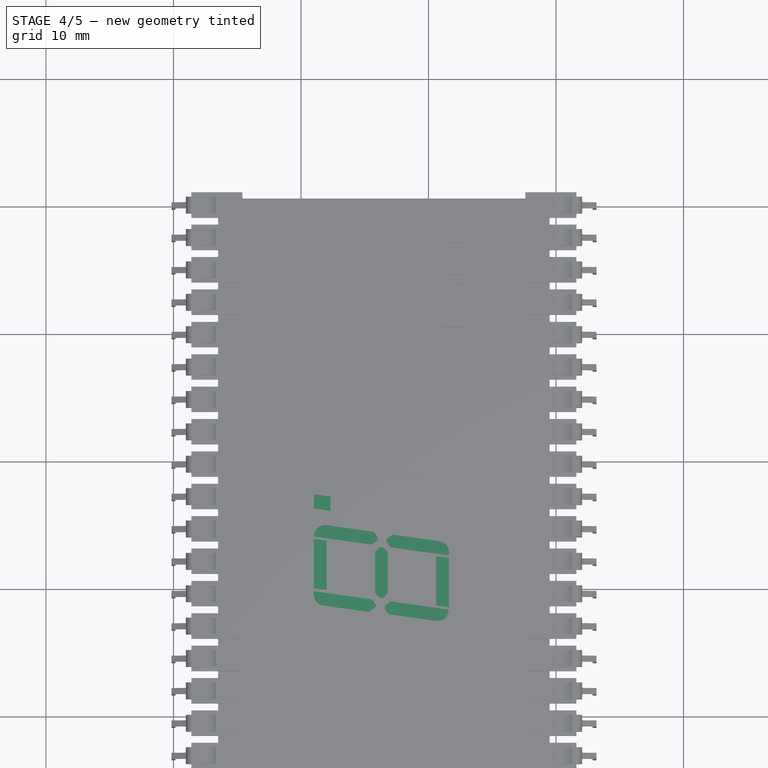
[diagram: stage 4 of 5 — top view after this stage's code; geometry added in this stage tinted green]
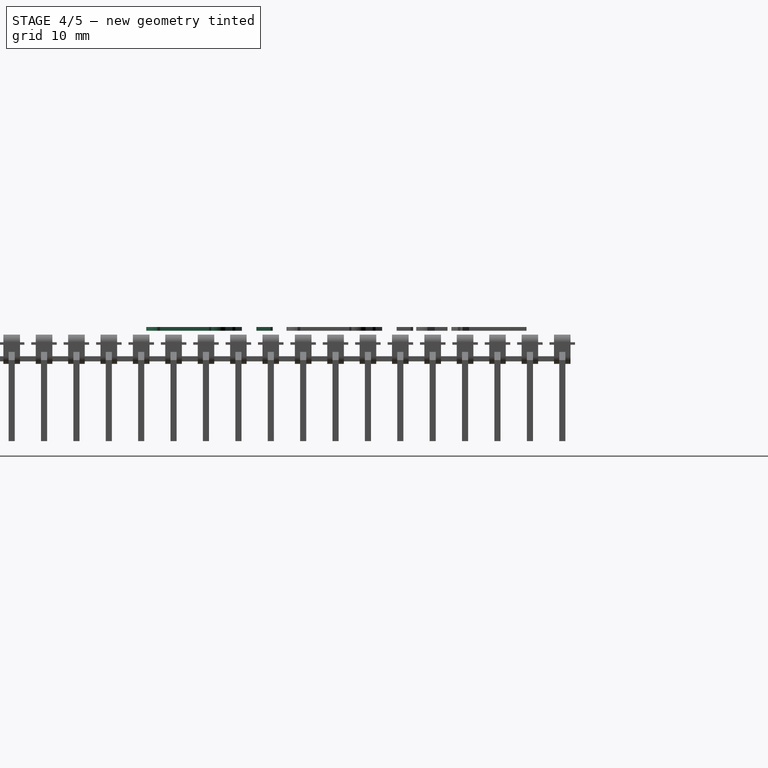
[diagram: stage 4 of 5 — right view after this stage's code; geometry added in this stage tinted green]
FEATURE [Part::Box] Box164  label="Kub121"
  AttacherType = Attacher::AttachEngine3D
  Height = 0.3
  Length = 1.3
  Placement = pos=(0,20,0) rot=(0,0,1;0rad)
  Width = 1.3
FEATURE [Part::Box] Box165  label="Kub122"
  AttacherType = Attacher::AttachEngine3D
  Height = 0.3
  Length = 2
  Placement = pos=(-0.5,19.25,0) rot=(0,0,-1;0.139626rad)
  Width = 1
FEATURE [Part::Box] Box166  label="Kub123"
  AttacherType = Attacher::AttachEngine3D
  Height = 0.3
  Length = 2
  Placement = pos=(-0.5,21.37,0) rot=(0,0,-1;0.139626rad)
  Width = 1
FEATURE [Part::Cut] Cut
  Base = -> Box164
  Tool = -> Box166
FEATURE [Part::Cut] Cut014
  Base = -> Cut
  Tool = -> Box165
FEATURE [Part::Box] Box167  label="Kub124"
  AttacherType = Attacher::AttachEngine3D
  Height = 0.3
  Length = 5
  Placement = pos=(0,18,0) rot=(0,0,-1;0.139626rad)
  Width = 1
FEATURE [Part::Box] Box168  label="Kub125"
  AttacherType = Attacher::AttachEngine3D
  Height = 0.3
  Length = 5
  Placement = pos=(0,13,0) rot=(0,0,-1;0.139626rad)
  Width = 1
FEATURE [Part::Box] Box170  label="Kub127"
  AttacherType = Attacher::AttachEngine3D
  Height = 0.3
  Length = 5
  Placement = pos=(6,12,0) rot=(0,0,-1;0.139626rad)
  Width = 1
FEATURE [Part::Box] Box171  label="Kub128"
  AttacherType = Attacher::AttachEngine3D
  Height = 0.3
  Length = 1
  Placement = pos=(-4,6,0) rot=(0,0,1;0rad)
  Width = 4
FEATURE [Part::Box] Box172  label="Kub129"
  AttacherType = Attacher::AttachEngine3D
  Height = 0.3
  Length = 3
  Placement = pos=(-5,10.14,0) rot=(0,0,-1;0.139626rad)
  Width = 1
FEATURE [Part::Box] Box173  label="Kub130"
  AttacherType = Attacher::AttachEngine3D
  Height = 0.3
  Length = 3
  Placement = pos=(-5,5.27,0) rot=(0,0,-1;0.139626rad)
  Width = 1
FEATURE [Part::Box] Box174  label="Kub131"
  AttacherType = Attacher::AttachEngine3D
  Height = 0.3
  Length = 1
  Placement = pos=(-10,14,0) rot=(0,0,1;0rad)
  Width = 4
FEATURE [Part::Box] Box175  label="Kub132"
  AttacherType = Attacher::AttachEngine3D
  Height = 0.3
  Length = 1
  Placement = pos=(-4,14,0) rot=(0,0,1;0rad)
  Width = 4
FEATURE [Part::Box] Box176  label="Kub133"
  AttacherType = Attacher::AttachEngine3D
  Height = 0.3
  Length = 3
  Placement = pos=(-5,18.14,0) rot=(0,0,-1;0.139626rad)
  Width = 1
FEATURE [Part::Box] Box177  label="Kub134"
  AttacherType = Attacher::AttachEngine3D
  Height = 0.3
  Length = 3
  Placement = pos=(-5,13.27,0) rot=(0,0,-1;0.139626rad)
  Width = 1
FEATURE [Part::Chamfer] Chamfer048
  Base = -> Box174
  Edges = 1 edges r=0.4: [Edge3]
FEATURE [Part::Chamfer] Chamfer049
  Base = -> Chamfer048
  Edges = 1 edges r=0.4: [Edge15]
FEATURE [Part::Chamfer] Chamfer050
  Base = -> Chamfer049
  Edges = 1 edges r=0.4: [Edge14]
FEATURE [Part::Chamfer] Chamfer051
  Base = -> Chamfer050
  Edges = 1 edges r=0.4: [Edge16]
  Placement = pos=(14.8,-0.85,0) rot=(0,0,1;0rad)
FEATURE [Part::Cut] Cut015
  Base = -> Box175
  Tool = -> Box177
FEATURE [Part::Cut] Cut016
  Base = -> Cut015
  Placement = pos=(4,-0.2,0) rot=(0,0,1;0rad)
  Tool = -> Box176
FEATURE [Part::Cut] Cut017
  Base = -> Box171
  Tool = -> Box173
FEATURE [Part::Cut] Cut018
  Base = -> Cut017
  Placement = pos=(13.6,6.45,0) rot=(0,0,1;0rad)
  Tool = -> Box172
FEATURE [Part::Chamfer] Chamfer052
  Base = -> Box167
  Edges = 1 edges r=0.4: [Edge7]
FEATURE [Part::Chamfer] Chamfer053
  Base = -> Chamfer052
  Edges = 1 edges r=0.4: [Edge3]
FEATURE [Part::Fillet] Fillet006
  Base = -> Chamfer053
  Edges = 1 edges r=0.9: [Edge18]
FEATURE [Part::Fillet] Fillet007
  Base = -> Box168
  Edges = 1 edges r=0.9: [Edge1]
FEATURE [Part::Chamfer] Chamfer054
  Base = -> Fillet007
  Edges = 1 edges r=0.5: [Edge15]
FEATURE [Part::Chamfer] Chamfer055
  Base = -> Chamfer054
  Edges = 1 edges r=0.4: [Edge14]
  Placement = pos=(-0.13,-0.3,0) rot=(0,0,1;0rad)
FEATURE [Part::Chamfer] Chamfer056
  Base = -> Box170
  Edges = 1 edges r=0.4: [Edge3]
FEATURE [Part::Chamfer] Chamfer057
  Base = -> Chamfer056
  Edges = 1 edges r=0.4: [Edge3]
FEATURE [Part::Fillet] Fillet008
  Base = -> Chamfer057
  Edges = 1 edges r=0.9: [Edge17]
  Placement = pos=(-0.5,-0.05,0) rot=(0,0,1;0rad)
FEATURE [Part::Chamfer] Chamfer058
  Base = -> Box169
  Edges = 1 edges r=0.4: [Edge1]
FEATURE [Part::Chamfer] Chamfer059
  Base = -> Chamfer058
  Edges = 1 edges r=0.4: [Edge3]
FEATURE [Part::Fillet] Fillet009
  Base = -> Chamfer059
  Edges = 1 edges r=0.9: [Edge17]
  Placement = pos=(-3.36,-0.8,0) rot=(0,0,1;0rad)
FEATURE [Part::MultiFuse] Fusion081  label="Digit002"
  Placement = pos=(11,-44,2.4) rot=(0,0,1;0rad)
  Shapes = -> [Cut018,Fillet006,Fillet009,Chamfer055,Fillet008,Cut016,Cut020,Chamfer051]
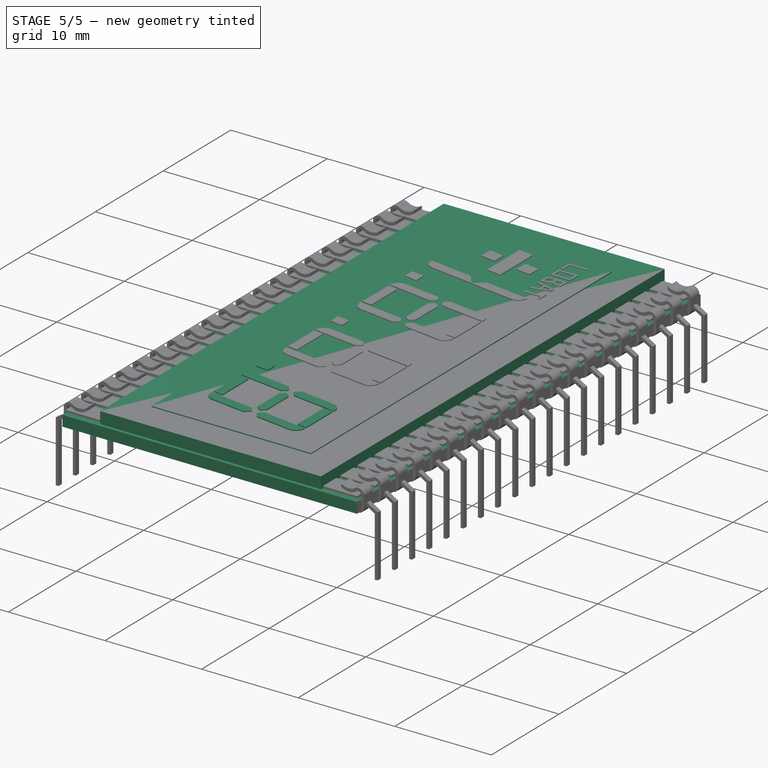
[diagram: stage 5 of 5 — iso view after this stage's code; geometry added in this stage tinted green]
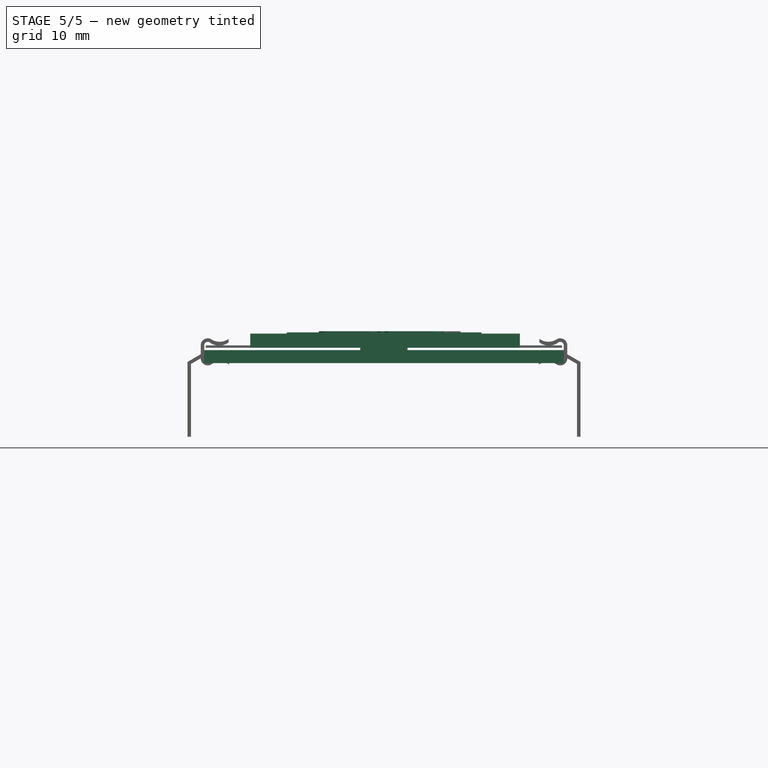
[diagram: stage 5 of 5 — front view after this stage's code; geometry added in this stage tinted green]
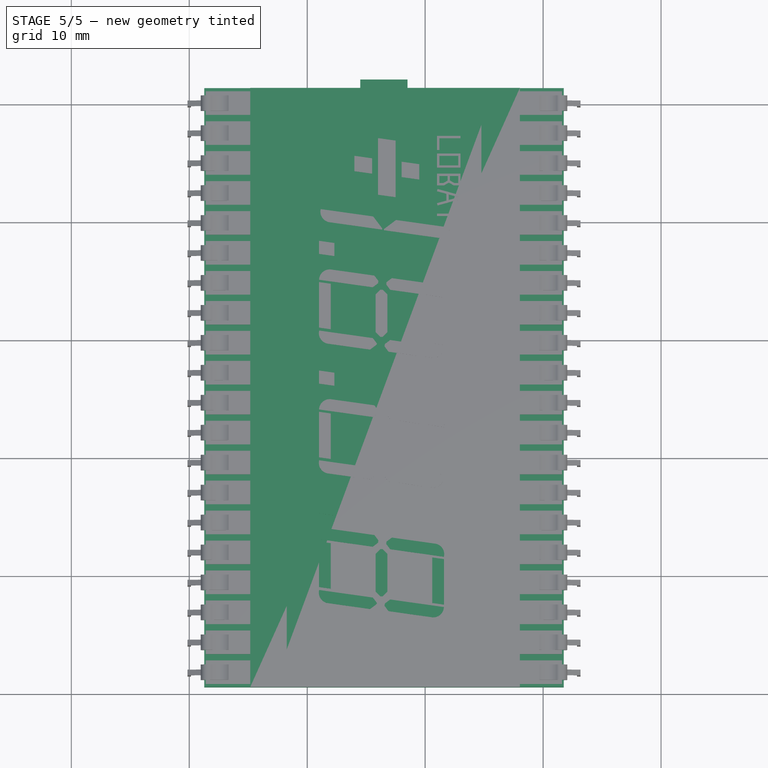
[diagram: stage 5 of 5 — top view after this stage's code; geometry added in this stage tinted green]
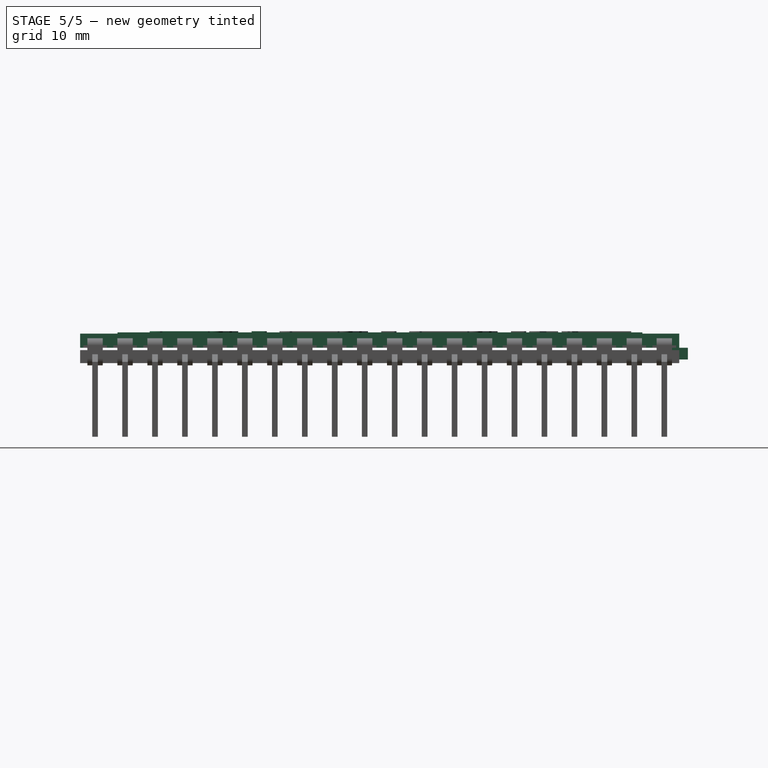
[diagram: stage 5 of 5 — right view after this stage's code; geometry added in this stage tinted green]
FEATURE [Sketcher::SketchObject] Sketch
  MapMode = 5
  Support = -> [XY_Plane]
  sketch-geometry (4):
    g0: LineSegment StartX=1.27 StartY=1.27 StartZ=0 EndX=31.75 EndY=1.27 EndZ=0
    g1: LineSegment StartX=31.75 StartY=1.27 StartZ=0 EndX=31.75 EndY=-49.53 EndZ=0
    g2: LineSegment StartX=31.75 StartY=-49.53 StartZ=0 EndX=1.27 EndY=-49.53 EndZ=0
    g3: LineSegment StartX=1.27 StartY=-49.53 StartZ=0 EndX=1.27 EndY=1.27 EndZ=0
  constraints (12):
    c: Coincident(g0,g1)
    c: Coincident(g1,g2)
    c: Coincident(g2,g3)
    c: Coincident(g3,g0)
    c: Horizontal(g0)
    c: Horizontal(g2)
    c: Vertical(g1)
    c: Vertical(g3)
    c: DistanceY(g1,g0) = 50.8
    c: DistanceX(g2,g1) = 30.48
    c: DistanceX(g-1,g0) = 1.27
    c: DistanceY(g-1,g0) = 1.27
FEATURE [PartDesign::Pad] Pad
  Length = 1.1
  Length2 = 100
  Profile = -> Sketch
  Type = 0
FEATURE [PartDesign::Body] Body
  Group = -> [Sketch,Pad]
  Origin = -> BodyOrigin
  Placement = pos=(0,0,0.3) rot=(0,0,1;0rad)
  Tip = -> Pad
FEATURE [Part::Box] Box  label="Frame"
  AttacherType = Attacher::AttachEngine3D
  Height = 1.2
  Length = 22.86
  Placement = pos=(5.17,-49.53,1.3) rot=(0,0,1;0rad)
  Width = 50.8
FEATURE [Part::Box] Box001  label="Glas"
  AttacherType = Attacher::AttachEngine3D
  Height = 0.2
  Length = 16.51
  Placement = pos=(8.26,-46.355,2.4) rot=(0,0,1;0rad)
  Width = 44.5
FEATURE [Part::Box] Box002  label="EdgeBlob"
  AttacherType = Attacher::AttachEngine3D
  Height = 1
  Length = 4
  Placement = pos=(14.5,0,0.3) rot=(0,0,1;0rad)
  Width = 2
FEATURE [Part::Box] Box123  label="Kub080"
  AttacherType = Attacher::AttachEngine3D
  Height = 0.3
  Length = 5
  Placement = pos=(0,18,0) rot=(0,0,-1;0.139626rad)
  Width = 1
FEATURE [Part::Box] Box124  label="Kub081"
  AttacherType = Attacher::AttachEngine3D
  Height = 0.3
  Length = 5
  Placement = pos=(0,13,0) rot=(0,0,-1;0.139626rad)
  Width = 1
FEATURE [Part::Box] Box156  label="Kub113"
  AttacherType = Attacher::AttachEngine3D
  Height = 0.3
  Length = 5
  Placement = pos=(9,18,0) rot=(0,0,-1;0.139626rad)
  Width = 1
FEATURE [Part::Box] Box126  label="Kub083"
  AttacherType = Attacher::AttachEngine3D
  Height = 0.3
  Length = 5
  Placement = pos=(6,12,0) rot=(0,0,-1;0.139626rad)
  Width = 1
FEATURE [Part::Box] Box157  label="Kub114"
  AttacherType = Attacher::AttachEngine3D
  Height = 0.3
  Length = 1
  Placement = pos=(-4,6,0) rot=(0,0,1;0rad)
  Width = 4
FEATURE [Part::Box] Box158  label="Kub115"
  AttacherType = Attacher::AttachEngine3D
  Height = 0.3
  Length = 3
  Placement = pos=(-5,10.14,0) rot=(0,0,-1;0.139626rad)
  Width = 1
FEATURE [Part::Box] Box159  label="Kub116"
  AttacherType = Attacher::AttachEngine3D
  Height = 0.3
  Length = 3
  Placement = pos=(-5,5.27,0) rot=(0,0,-1;0.139626rad)
  Width = 1
FEATURE [Part::Box] Box160  label="Kub117"
  AttacherType = Attacher::AttachEngine3D
  Height = 0.3
  Length = 1
  Placement = pos=(-10,14,0) rot=(0,0,1;0rad)
  Width = 4
FEATURE [Part::Box] Box161  label="Kub118"
  AttacherType = Attacher::AttachEngine3D
  Height = 0.3
  Length = 1
  Placement = pos=(-4,14,0) rot=(0,0,1;0rad)
  Width = 4
FEATURE [Part::Box] Box162  label="Kub119"
  AttacherType = Attacher::AttachEngine3D
  Height = 0.3
  Length = 3
  Placement = pos=(-5,18.14,0) rot=(0,0,-1;0.139626rad)
  Width = 1
FEATURE [Part::Box] Box163  label="Kub120"
  AttacherType = Attacher::AttachEngine3D
  Height = 0.3
  Length = 3
  Placement = pos=(-5,13.27,0) rot=(0,0,-1;0.139626rad)
  Width = 1
FEATURE [Part::Chamfer] Chamfer047
  Base = -> Box160
  Edges = 1 edges r=0.4: [Edge3]
FEATURE [Part::Chamfer] Chamfer012
  Base = -> Chamfer047
  Edges = 1 edges r=0.4: [Edge15]
FEATURE [Part::Chamfer] Chamfer013
  Base = -> Chamfer012
  Edges = 1 edges r=0.4: [Edge14]
FEATURE [Part::Chamfer] Chamfer014
  Base = -> Chamfer013
  Edges = 1 edges r=0.4: [Edge16]
  Placement = pos=(14.8,-0.85,0) rot=(0,0,1;0rad)
FEATURE [Part::Cut] Cut012
  Base = -> Box161
  Tool = -> Box163
FEATURE [Part::Cut] Cut001
  Base = -> Cut012
  Placement = pos=(4,-0.2,0) rot=(0,0,1;0rad)
  Tool = -> Box162
FEATURE [Part::Cut] Cut013
  Base = -> Box157
  Tool = -> Box159
FEATURE [Part::Cut] Cut003
  Base = -> Cut013
  Placement = pos=(13.6,6.45,0) rot=(0,0,1;0rad)
  Tool = -> Box158
FEATURE [Part::Chamfer] Chamfer015
  Base = -> Box123
  Edges = 1 edges r=0.4: [Edge7]
FEATURE [Part::Chamfer] Chamfer016
  Base = -> Chamfer015
  Edges = 1 edges r=0.4: [Edge3]
FEATURE [Part::Fillet] Fillet003
  Base = -> Chamfer016
  Edges = 1 edges r=0.9: [Edge18]
FEATURE [Part::Fillet] Fillet004
  Base = -> Box124
  Edges = 1 edges r=0.9: [Edge1]
FEATURE [Part::Chamfer] Chamfer017
  Base = -> Fillet004
  Edges = 1 edges r=0.5: [Edge15]
FEATURE [Part::Chamfer] Chamfer018
  Base = -> Chamfer017
  Edges = 1 edges r=0.4: [Edge14]
  Placement = pos=(-0.13,-0.3,0) rot=(0,0,1;0rad)
FEATURE [Part::Chamfer] Chamfer019
  Base = -> Box126
  Edges = 1 edges r=0.4: [Edge3]
FEATURE [Part::Chamfer] Chamfer020
  Base = -> Chamfer019
  Edges = 1 edges r=0.4: [Edge3]
FEATURE [Part::Fillet] Fillet005
  Base = -> Chamfer020
  Edges = 1 edges r=0.9: [Edge17]
  Placement = pos=(-0.5,-0.05,0) rot=(0,0,1;0rad)
FEATURE [Part::Chamfer] Chamfer021
  Base = -> Box156
  Edges = 1 edges r=0.4: [Edge1]
FEATURE [Part::Chamfer] Chamfer022
  Base = -> Chamfer021
  Edges = 1 edges r=0.4: [Edge3]
FEATURE [Part::Fillet] Fillet
  Base = -> Chamfer022
  Edges = 1 edges r=0.9: [Edge17]
  Placement = pos=(-3.36,-0.8,0) rot=(0,0,1;0rad)
FEATURE [Part::MultiFuse] Fusion080  label="Digit003"
  Placement = pos=(11,-55,2.4) rot=(0,0,1;0rad)
  Shapes = -> [Cut003,Fillet003,Fillet,Chamfer018,Fillet005,Cut001,Cut014,Chamfer014]
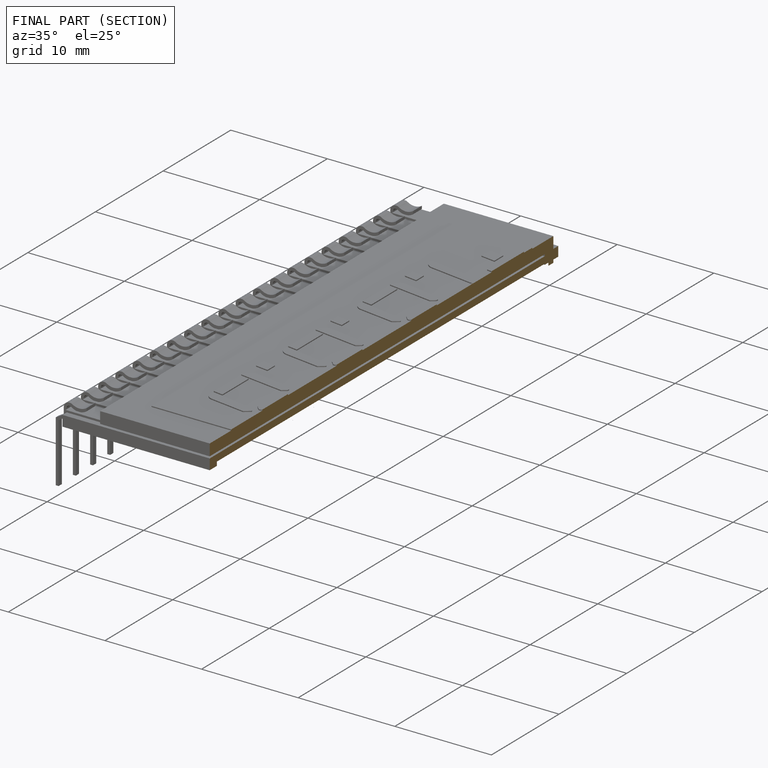
[diagram: finished part — half-section view (interior)]
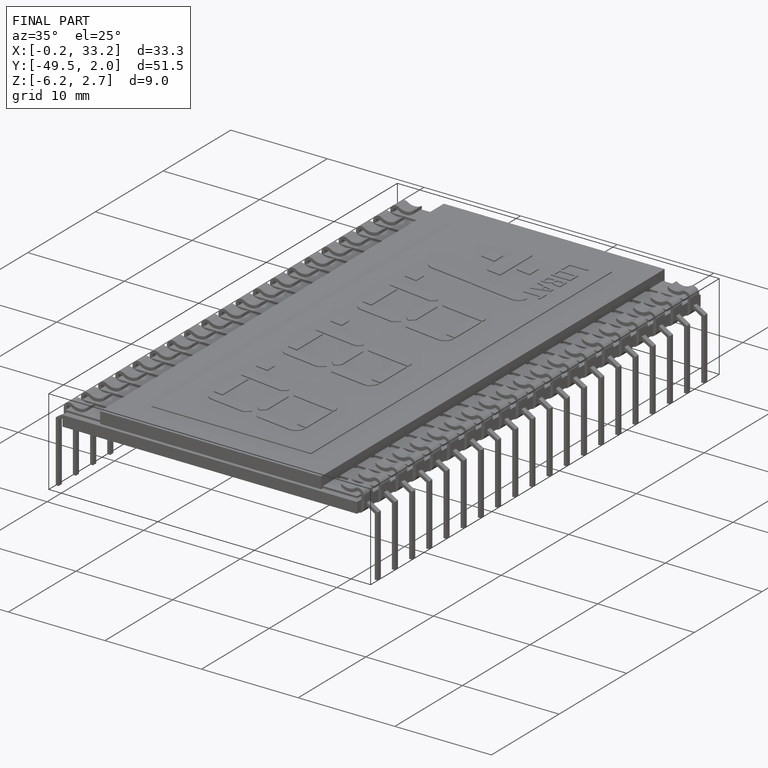
[diagram: finished part — iso view with bounding-box wireframe]
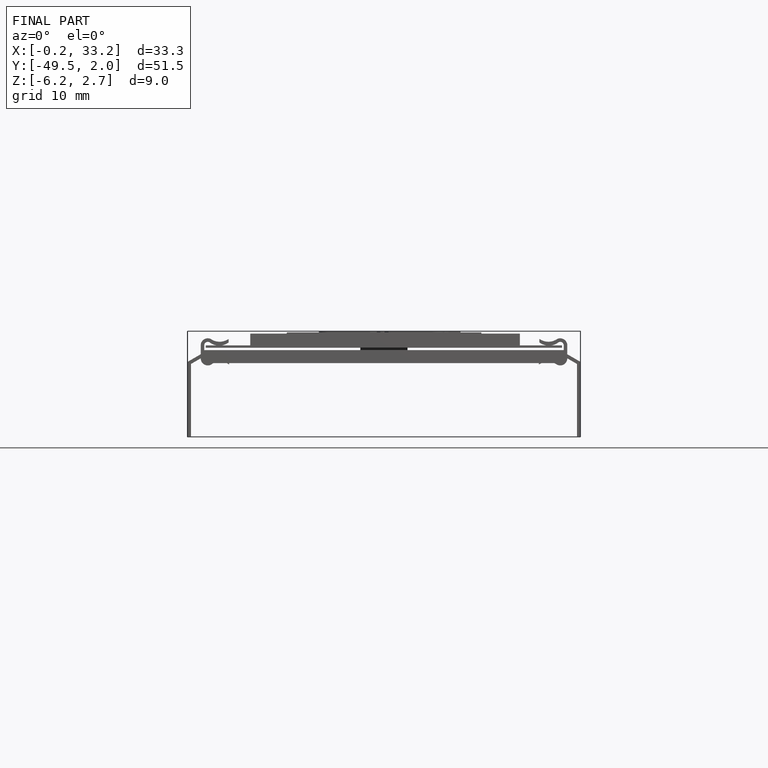
[diagram: finished part — front view with bounding-box wireframe]
